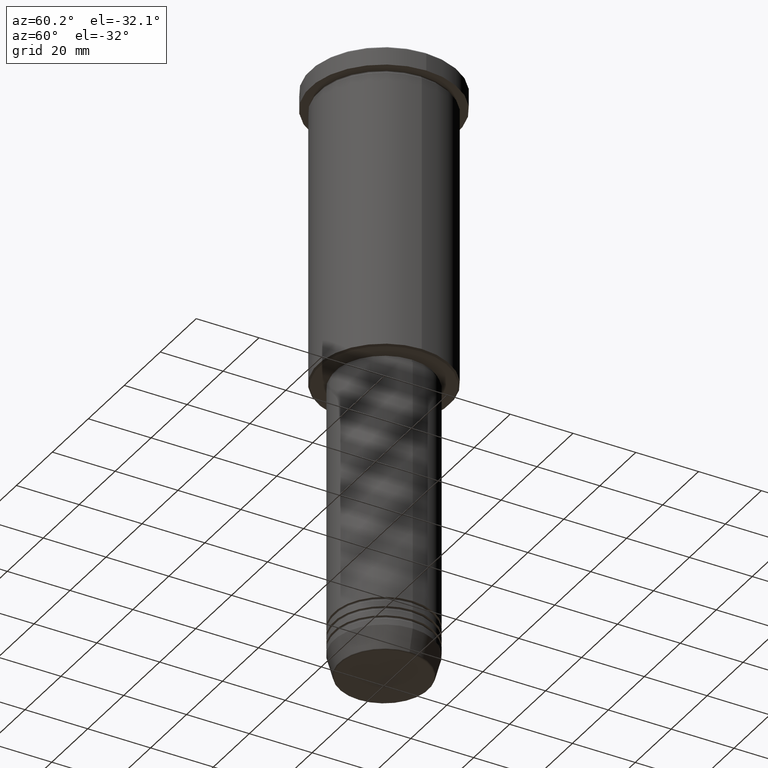
[diagram: clean part render]
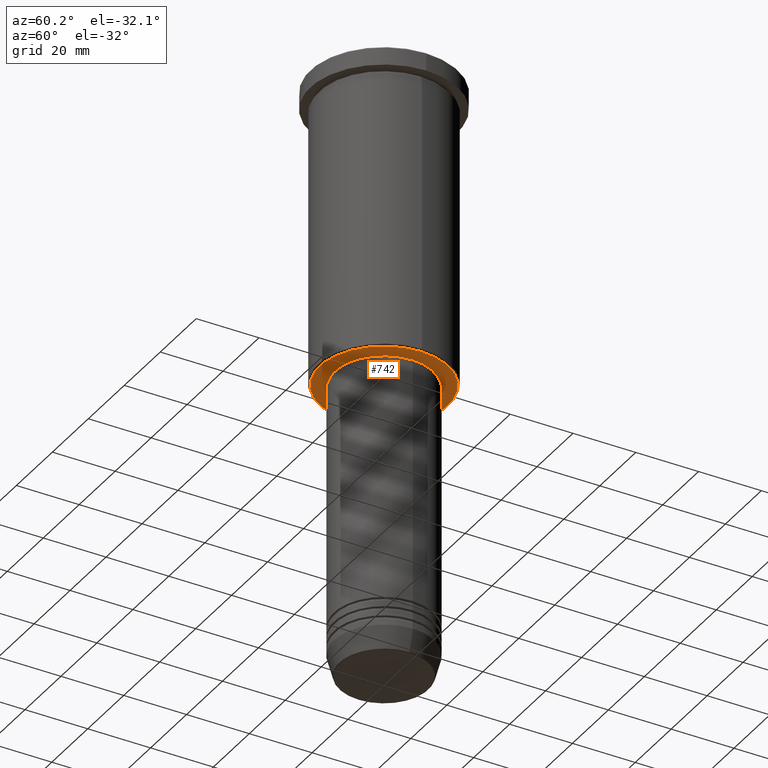
[diagram: same view with one face highlighted and labeled with its STEP entity id]
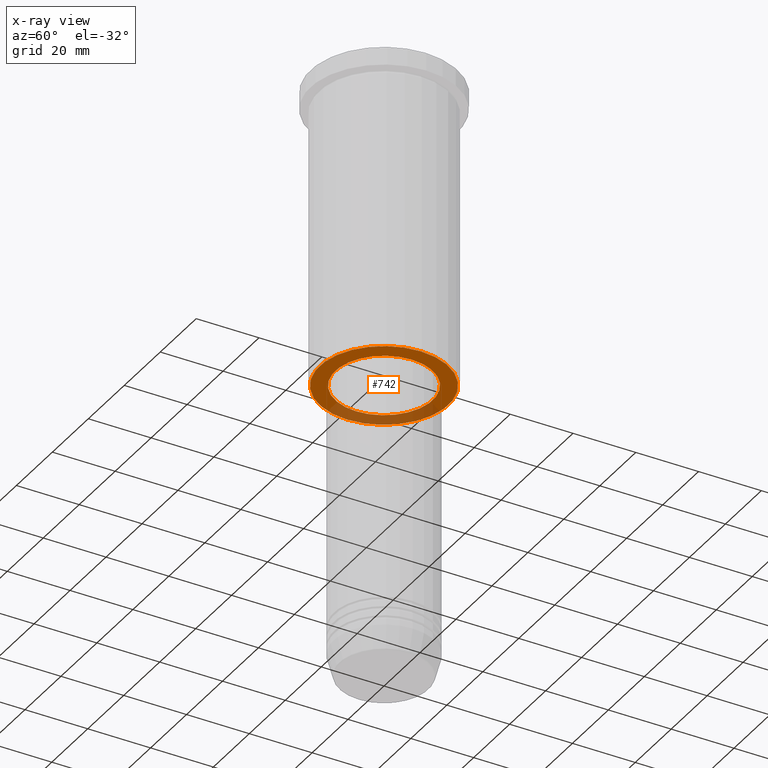
[diagram: x-ray of the same camera — body ghosted, the highlighted face saturated]
A machine part, auxiliary view. The second image highlights one B-rep face of the part: STEP entity #742.
The next image is the same camera in x-ray: the body ghosted, the highlighted face saturated — about 29% of this face is hidden behind the body in this view.
In plain terms, the highlighted planar face has unit normal (0, 0, -1).
Its self-contained STEP definition (entity closure, byte-faithful):
#56 = EDGE_LOOP ( 'NONE', ( #940, #412 ) ) ;
#66 = DIRECTION ( 'NONE',  ( 0.000000000000000000, 0.000000000000000000, -1.000000000000000000 ) ) ;
#78 = CARTESIAN_POINT ( 'NONE',  ( 0.000000000000000000, 21.00000000000000000, -96.00000000000001421 ) ) ;
#109 = DIRECTION ( 'NONE',  ( 0.000000000000000000, 0.000000000000000000, -1.000000000000000000 ) ) ;
#146 = EDGE_CURVE ( 'NONE', #1139, #916, #484, .T. ) ;
#195 = PLANE ( 'NONE',  #1114 ) ;
#254 = EDGE_CURVE ( 'NONE', #581, #483, #301, .T. ) ;
#299 = DIRECTION ( 'NONE',  ( -1.000000000000000000, 0.000000000000000000, 0.000000000000000000 ) ) ;
#301 = CIRCLE ( 'NONE', #1077, 20.50000000000000355 ) ;
#332 = EDGE_CURVE ( 'NONE', #916, #1139, #609, .T. ) ;
#338 = DIRECTION ( 'NONE',  ( -1.000000000000000000, 0.000000000000000000, 0.000000000000000000 ) ) ;
#364 = DIRECTION ( 'NONE',  ( -1.000000000000000000, 0.000000000000000000, -0.000000000000000000 ) ) ;
#388 = DIRECTION ( 'NONE',  ( 1.000000000000000000, 0.000000000000000000, 0.000000000000000000 ) ) ;
#412 = ORIENTED_EDGE ( 'NONE', *, *, #254, .T. ) ;
#483 = VERTEX_POINT ( 'NONE', #538 ) ;
#484 = CIRCLE ( 'NONE', #586, 15.50000000000000000 ) ;
#500 = ORIENTED_EDGE ( 'NONE', *, *, #332, .T. ) ;
#507 = CARTESIAN_POINT ( 'NONE',  ( 15.50000000000000000, 0.000000000000000000, -96.00000000000001421 ) ) ;
#538 = CARTESIAN_POINT ( 'NONE',  ( 20.50000000000000355, 0.000000000000000000, -96.00000000000001421 ) ) ;
#581 = VERTEX_POINT ( 'NONE', #856 ) ;
#586 = AXIS2_PLACEMENT_3D ( 'NONE', #659, #741, #388 ) ;
#591 = AXIS2_PLACEMENT_3D ( 'NONE', #1062, #66, #338 ) ;
#609 = CIRCLE ( 'NONE', #811, 15.50000000000000000 ) ;
#619 = CARTESIAN_POINT ( 'NONE',  ( 0.000000000000000000, 0.000000000000000000, -96.00000000000001421 ) ) ;
#630 = EDGE_CURVE ( 'NONE', #483, #581, #1078, .T. ) ;
#659 = CARTESIAN_POINT ( 'NONE',  ( 0.000000000000000000, 0.000000000000000000, -96.00000000000001421 ) ) ;
#692 = DIRECTION ( 'NONE',  ( 0.000000000000000000, 0.000000000000000000, -1.000000000000000000 ) ) ;
#694 = DIRECTION ( 'NONE',  ( 1.000000000000000000, 0.000000000000000000, 0.000000000000000000 ) ) ;
#741 = DIRECTION ( 'NONE',  ( -0.000000000000000000, -0.000000000000000000, 1.000000000000000000 ) ) ;
#742 = ADVANCED_FACE ( 'NONE', ( #820, #1012 ), #195, .T. ) ;
#811 = AXIS2_PLACEMENT_3D ( 'NONE', #619, #877, #694 ) ;
#820 = FACE_OUTER_BOUND ( 'NONE', #56, .T. ) ;
#838 = ORIENTED_EDGE ( 'NONE', *, *, #146, .T. ) ;
#856 = CARTESIAN_POINT ( 'NONE',  ( -20.50000000000000355, 2.541142108230758269E-15, -96.00000000000001421 ) ) ;
#877 = DIRECTION ( 'NONE',  ( -0.000000000000000000, -0.000000000000000000, 1.000000000000000000 ) ) ;
#916 = VERTEX_POINT ( 'NONE', #1145 ) ;
#929 = CARTESIAN_POINT ( 'NONE',  ( 0.000000000000000000, 0.000000000000000000, -96.00000000000001421 ) ) ;
#940 = ORIENTED_EDGE ( 'NONE', *, *, #630, .T. ) ;
#1012 = FACE_BOUND ( 'NONE', #1118, .T. ) ;
#1062 = CARTESIAN_POINT ( 'NONE',  ( 0.000000000000000000, 0.000000000000000000, -96.00000000000001421 ) ) ;
#1077 = AXIS2_PLACEMENT_3D ( 'NONE', #929, #109, #299 ) ;
#1078 = CIRCLE ( 'NONE', #591, 20.50000000000000355 ) ;
#1114 = AXIS2_PLACEMENT_3D ( 'NONE', #78, #692, #364 ) ;
#1118 = EDGE_LOOP ( 'NONE', ( #838, #500 ) ) ;
#1139 = VERTEX_POINT ( 'NONE', #507 ) ;
#1145 = CARTESIAN_POINT ( 'NONE',  ( -15.50000000000000000, 1.898202538678397557E-15, -96.00000000000001421 ) ) ;